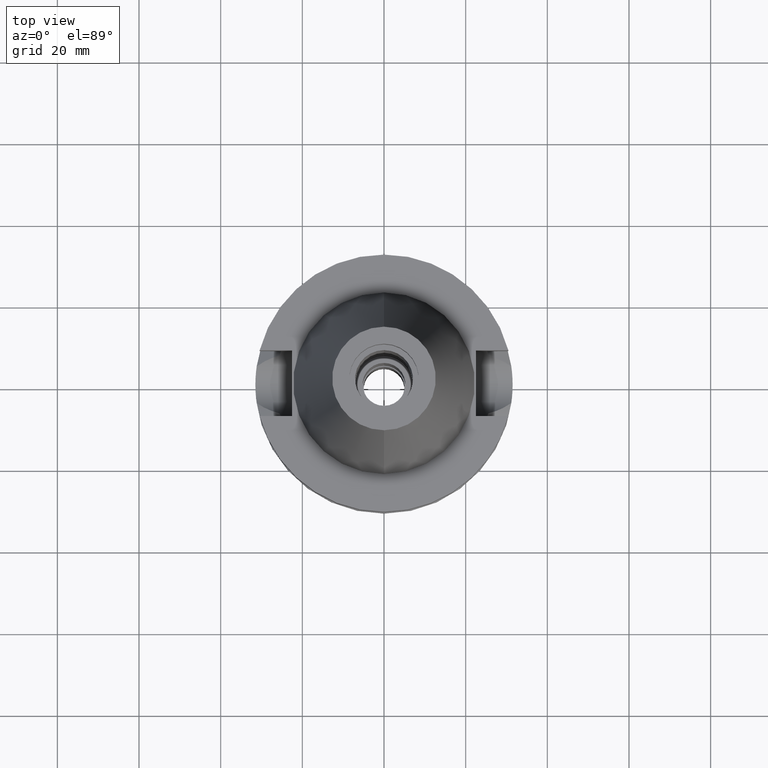
[diagram: clean part render]
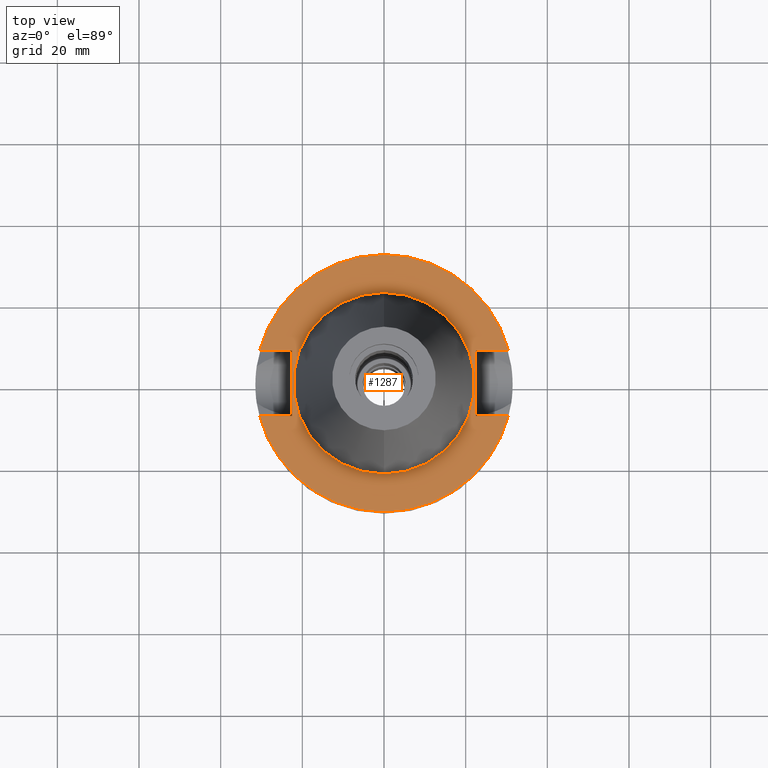
[diagram: same view with one face highlighted and labeled with its STEP entity id]
A machine part, top view. The second image highlights one B-rep face of the part: STEP entity #1287.
In plain terms, the highlighted planar face has unit normal (0, 0, -1).
Its self-contained STEP definition (entity closure, byte-faithful):
#94=DIRECTION('',(0.E0,1.E0,0.E0));
#95=VECTOR('',#94,1.61E1);
#96=CARTESIAN_POINT('',(-2.25E1,-8.05E0,-1.E0));
#97=LINE('',#96,#95);
#101=DIRECTION('',(-1.E0,-3.550916904668E-14,0.E0));
#102=VECTOR('',#101,7.954022722788E0);
#103=CARTESIAN_POINT('',(-2.25E1,8.05E0,-1.E0));
#104=LINE('',#103,#102);
#108=CARTESIAN_POINT('',(0.E0,2.120720862083E-14,-1.E0));
#109=DIRECTION('',(0.E0,0.E0,-1.E0));
#110=DIRECTION('',(-9.667943721520E-1,2.555555555556E-1,0.E0));
#111=AXIS2_PLACEMENT_3D('',#108,#109,#110);
#116=CARTESIAN_POINT('',(0.E0,2.120720862083E-14,-1.E0));
#117=DIRECTION('',(0.E0,0.E0,-1.E0));
#118=DIRECTION('',(0.E0,1.E0,0.E0));
#119=AXIS2_PLACEMENT_3D('',#116,#117,#118);
#124=DIRECTION('',(0.E0,-1.E0,0.E0));
#125=VECTOR('',#124,1.61E1);
#126=CARTESIAN_POINT('',(2.25E1,8.05E0,-1.E0));
#127=LINE('',#126,#125);
#131=DIRECTION('',(1.E0,3.573249715390E-14,0.E0));
#132=VECTOR('',#131,7.954022722788E0);
#133=CARTESIAN_POINT('',(2.25E1,-8.05E0,-1.E0));
#134=LINE('',#133,#132);
#138=CARTESIAN_POINT('',(0.E0,2.120720862083E-14,-1.E0));
#139=DIRECTION('',(0.E0,0.E0,-1.E0));
#140=DIRECTION('',(9.667943721520E-1,-2.555555555556E-1,0.E0));
#141=AXIS2_PLACEMENT_3D('',#138,#139,#140);
#146=CARTESIAN_POINT('',(0.E0,2.120720862083E-14,-1.E0));
#147=DIRECTION('',(0.E0,0.E0,-1.E0));
#148=DIRECTION('',(0.E0,-1.E0,0.E0));
#149=AXIS2_PLACEMENT_3D('',#146,#147,#148);
#154=CARTESIAN_POINT('',(0.E0,2.120720862083E-14,-1.E0));
#155=DIRECTION('',(0.E0,0.E0,1.E0));
#156=DIRECTION('',(0.E0,-1.E0,0.E0));
#157=AXIS2_PLACEMENT_3D('',#154,#155,#156);
#162=CARTESIAN_POINT('',(0.E0,2.120720862083E-14,-1.E0));
#163=DIRECTION('',(0.E0,0.E0,1.E0));
#164=DIRECTION('',(0.E0,1.E0,0.E0));
#165=AXIS2_PLACEMENT_3D('',#162,#163,#164);
#200=DIRECTION('',(-1.E0,3.550916904668E-14,0.E0));
#201=VECTOR('',#200,7.954022722788E0);
#202=CARTESIAN_POINT('',(-2.25E1,-8.05E0,-1.E0));
#203=LINE('',#202,#201);
#337=DIRECTION('',(1.E0,-3.506251283226E-14,0.E0));
#338=VECTOR('',#337,7.954022722788E0);
#339=CARTESIAN_POINT('',(2.25E1,8.05E0,-1.E0));
#340=LINE('',#339,#338);
#1144=CARTESIAN_POINT('',(-2.25E1,-8.05E0,-1.E0));
#1145=VERTEX_POINT('',#1144);
#1146=CARTESIAN_POINT('',(-3.045402272279E1,-8.05E0,-1.E0));
#1147=VERTEX_POINT('',#1146);
#1150=CARTESIAN_POINT('',(-2.25E1,8.05E0,-1.E0));
#1151=VERTEX_POINT('',#1150);
#1152=CARTESIAN_POINT('',(-3.045402272279E1,8.05E0,-1.E0));
#1153=VERTEX_POINT('',#1152);
#1154=CARTESIAN_POINT('',(-3.046064939756E-14,3.15E1,-1.E0));
#1155=CARTESIAN_POINT('',(3.045402272279E1,8.05E0,-1.E0));
#1156=VERTEX_POINT('',#1154);
#1157=VERTEX_POINT('',#1155);
#1158=CARTESIAN_POINT('',(2.25E1,8.05E0,-1.E0));
#1159=VERTEX_POINT('',#1158);
#1160=CARTESIAN_POINT('',(2.25E1,-8.05E0,-1.E0));
#1161=VERTEX_POINT('',#1160);
#1162=CARTESIAN_POINT('',(3.045402272279E1,-8.05E0,-1.E0));
#1163=VERTEX_POINT('',#1162);
#1164=CARTESIAN_POINT('',(3.046064939756E-14,-3.15E1,-1.E0));
#1165=VERTEX_POINT('',#1164);
#1166=CARTESIAN_POINT('',(0.E0,-2.2225E1,-1.E0));
#1167=CARTESIAN_POINT('',(0.E0,2.2225E1,-1.E0));
#1168=VERTEX_POINT('',#1166);
#1169=VERTEX_POINT('',#1167);
#1256=CARTESIAN_POINT('',(0.E0,1.212400331156E-14,-1.E0));
#1257=DIRECTION('',(0.E0,0.E0,-1.E0));
#1258=DIRECTION('',(0.E0,-1.E0,0.E0));
#1259=AXIS2_PLACEMENT_3D('',#1256,#1257,#1258);
#1260=PLANE('',#1259);
#1262=ORIENTED_EDGE('',*,*,#1261,.T.);
#1264=ORIENTED_EDGE('',*,*,#1263,.T.);
#1266=ORIENTED_EDGE('',*,*,#1265,.T.);
#1268=ORIENTED_EDGE('',*,*,#1267,.T.);
#1270=ORIENTED_EDGE('',*,*,#1269,.F.);
#1272=ORIENTED_EDGE('',*,*,#1271,.T.);
#1274=ORIENTED_EDGE('',*,*,#1273,.T.);
#1276=ORIENTED_EDGE('',*,*,#1275,.T.);
#1278=ORIENTED_EDGE('',*,*,#1277,.T.);
#1280=ORIENTED_EDGE('',*,*,#1279,.F.);
#1281=EDGE_LOOP('',(#1262,#1264,#1266,#1268,#1270,#1272,#1274,#1276,#1278,
#1280));
#1282=FACE_OUTER_BOUND('',#1281,.F.);
#1283=ORIENTED_EDGE('',*,*,#1235,.T.);
#1284=ORIENTED_EDGE('',*,*,#1251,.T.);
#1285=EDGE_LOOP('',(#1283,#1284));
#1286=FACE_BOUND('',#1285,.F.);
#112=CIRCLE('',#111,3.15E1);
#120=CIRCLE('',#119,3.15E1);
#142=CIRCLE('',#141,3.15E1);
#150=CIRCLE('',#149,3.15E1);
#158=CIRCLE('',#157,2.2225E1);
#166=CIRCLE('',#165,2.2225E1);
#1235=EDGE_CURVE('',#1168,#1169,#158,.T.);
#1251=EDGE_CURVE('',#1169,#1168,#166,.T.);
#1261=EDGE_CURVE('',#1145,#1151,#97,.T.);
#1263=EDGE_CURVE('',#1151,#1153,#104,.T.);
#1265=EDGE_CURVE('',#1153,#1156,#112,.T.);
#1267=EDGE_CURVE('',#1156,#1157,#120,.T.);
#1269=EDGE_CURVE('',#1159,#1157,#340,.T.);
#1271=EDGE_CURVE('',#1159,#1161,#127,.T.);
#1273=EDGE_CURVE('',#1161,#1163,#134,.T.);
#1275=EDGE_CURVE('',#1163,#1165,#142,.T.);
#1277=EDGE_CURVE('',#1165,#1147,#150,.T.);
#1279=EDGE_CURVE('',#1145,#1147,#203,.T.);
#1287=ADVANCED_FACE('',(#1282,#1286),#1260,.F.);